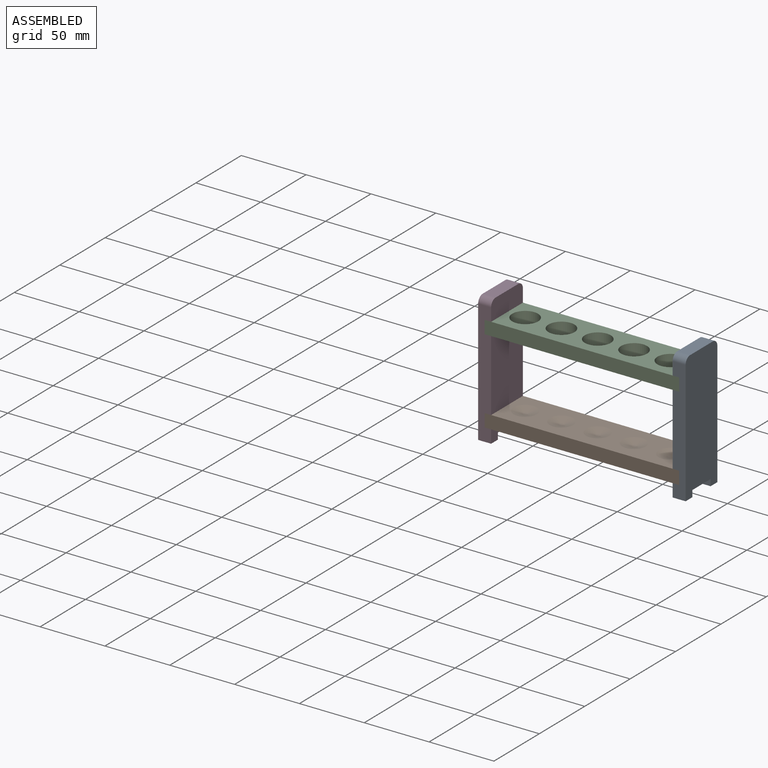
[diagram: assembled view]
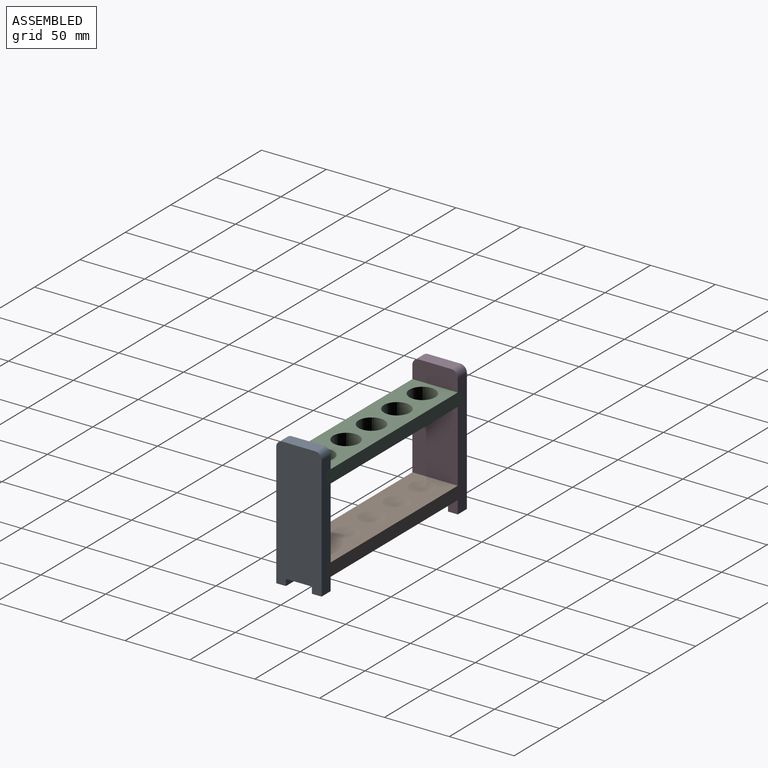
[diagram: assembled view, second angle]
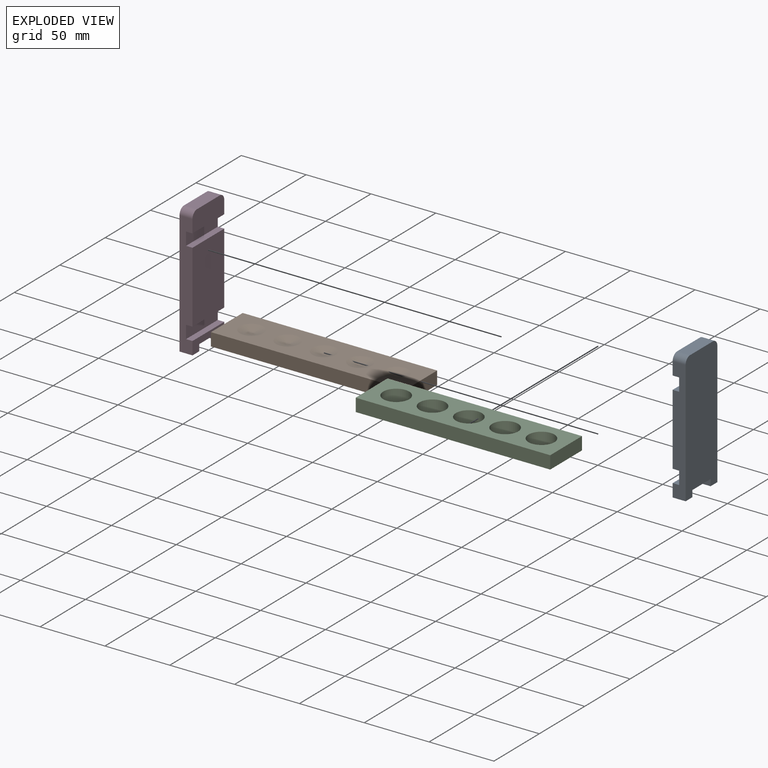
[diagram: exploded view]
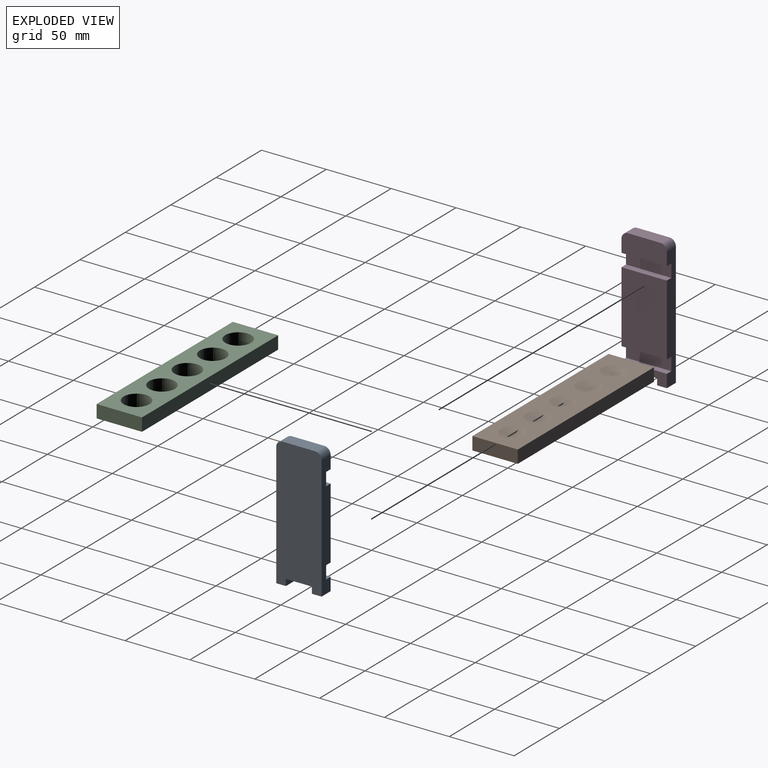
[diagram: exploded view, second angle]
ASSEMBLY  parts=4 mates=3
PART A: 20 faces, bbox 10x35x100 mm
  f0: plane 10x7.5mm, normal (0,0,-1), area 75mm2, adj f1,f2,f14,f15
  f1: plane 35x10mm, normal (1,0,0), area 250mm2, adj f0,f3,f4,f13,f14,f15,f16,f17
  f2: plane 100x35mm, normal (-1,0,0), area 3389.3mm2, adj f0,f3,f12,f13,f14,f15,f16,f17
  f3: plane 10x7.5mm, normal (0,0,-1), area 75mm2, adj f1,f2,f13,f17
  f4: plane 35x5mm, normal (0,0,1), area 175mm2, adj f1,f5,f13,f14
  f5: plane 35x10mm, normal (1,0,0), area 350mm2, adj f4,f6,f13,f14
  f6: plane 35x5mm, normal (0,0,-1), area 175mm2, adj f5,f7,f13,f14
  f7: plane 55x35mm, normal (1,0,0), area 1925mm2, adj f6,f8,f13,f14
  f8: plane 35x5mm, normal (0,0,1), area 175mm2, adj f7,f9,f13,f14
  f9: plane 35x10mm, normal (1,0,0), area 350mm2, adj f8,f10,f13,f14
  f10: plane 35x5mm, normal (0,0,-1), area 175mm2, adj f9,f11,f13,f14
  f11: plane 35x15mm, normal (1,0,0), area 514.3mm2, adj f10,f12,f13,f14,f18,f19
  f12: plane 25x10mm, normal (0,0,1), area 250mm2, adj f2,f11,f18,f19
  f13: plane 95x10mm, normal (0,-1,0), area 850mm2, adj f1,f2,f3,f4,f5,f6,f7,f8
  f14: plane 95x10mm, normal (0,1,0), area 850mm2, adj f0,f1,f2,f4,f5,f6,f7,f8
  f15: plane 10x5mm, normal (0,-1,0), area 50mm2, adj f0,f1,f2,f16
  f16: plane 20x10mm, normal (0,0,-1), area 200mm2, adj f1,f2,f15,f17
  f17: plane 10x5mm, normal (0,1,0), area 50mm2, adj f1,f2,f3,f16
  f18: cylinder r=5mm len=10mm, axis (-1,0,0), area 78.5mm2, adj f2,f11,f12,f14
  f19: cylinder r=5mm len=10mm, axis (1,0,0), area 78.5mm2, adj f2,f11,f12,f13
PART B: 16 faces, bbox 150x35x10 mm
  f0: plane 150x10mm, normal (0,-1,0), area 1500mm2, adj f1,f3,f4,f5
  f1: plane 35x10mm, normal (1,0,0), area 350mm2, adj f0,f2,f4,f5
  f2: plane 150x10mm, normal (0,1,0), area 1500mm2, adj f1,f3,f4,f5
  f3: plane 35x10mm, normal (-1,0,0), area 350mm2, adj f0,f2,f4,f5
  f4: plane 150x35mm, normal (0,0,1), area 3977.7mm2, adj f0,f1,f2,f3,f6,f8,f10,f12
  f5: plane 150x35mm, normal (0,0,-1), area 5250mm2, adj f0,f1,f2,f3
  f6: cone r=9mm half-angle=75deg, axis (0,0,1), area 255.8mm2, adj f4,f7
  f7: plane 3.07x3.07mm, normal (0,0,1), area 7.4mm2, adj f6
  f8: cone r=9mm half-angle=75deg, axis (0,0,1), area 255.8mm2, adj f4,f9
  f9: plane 3.07x3.07mm, normal (0,0,1), area 7.4mm2, adj f8
  f10: cone r=9mm half-angle=75deg, axis (0,0,1), area 255.8mm2, adj f4,f11
  f11: plane 3.07x3.07mm, normal (0,0,1), area 7.4mm2, adj f10
  f12: cone r=9mm half-angle=75deg, axis (0,0,1), area 255.8mm2, adj f4,f13
  f13: plane 3.07x3.07mm, normal (0,0,1), area 7.4mm2, adj f12
  f14: cone r=9mm half-angle=75deg, axis (0,0,1), area 255.8mm2, adj f4,f15
  f15: plane 3.07x3.07mm, normal (0,0,1), area 7.4mm2, adj f14
PART C: 11 faces, bbox 150x35x10 mm
  f0: plane 150x10mm, normal (0,-1,0), area 1500mm2, adj f1,f3,f4,f5
  f1: plane 35x10mm, normal (1,0,0), area 350mm2, adj f0,f2,f4,f5
  f2: plane 150x10mm, normal (0,1,0), area 1500mm2, adj f1,f3,f4,f5
  f3: plane 35x10mm, normal (-1,0,0), area 350mm2, adj f0,f2,f4,f5
  f4: plane 150x35mm, normal (0,0,1), area 3679.2mm2, adj f0,f1,f2,f3,f6,f7,f8,f9
  f5: plane 150x35mm, normal (0,0,-1), area 3679.2mm2, adj f0,f1,f2,f3,f6,f7,f8,f9
  f6: cylinder r=10mm len=20mm, axis (0,0,1), area 628.3mm2, adj f4,f5
  f7: cylinder r=10mm len=20mm, axis (0,0,1), area 628.3mm2, adj f4,f5
  f8: cylinder r=10mm len=20mm, axis (0,0,1), area 628.3mm2, adj f4,f5
  f9: cylinder r=10mm len=20mm, axis (0,0,1), area 628.3mm2, adj f4,f5
  f10: cylinder r=10mm len=20mm, axis (0,0,1), area 628.3mm2, adj f4,f5
PART D: same geometry as A
PLACE A rot(axis=(0,0,-1),180deg) t=(80.01,0,-0.15)mm
PLACE B t=(0.01,0,9.85)mm
PLACE C t=(0.01,0,74.85)mm
PLACE D t=(-79.99,0,-0.15)mm
MATE fastened D.f9 <-> C.f3  axis (1,0,0) through (-74.99,0,79.85)mm
MATE fastened A.f9 <-> C.f1  axis (-1,0,0) through (75.01,0,79.85)mm
MATE fastened A.f5 <-> B.f1  axis (-1,0,0) through (75.01,0,14.85)mm
